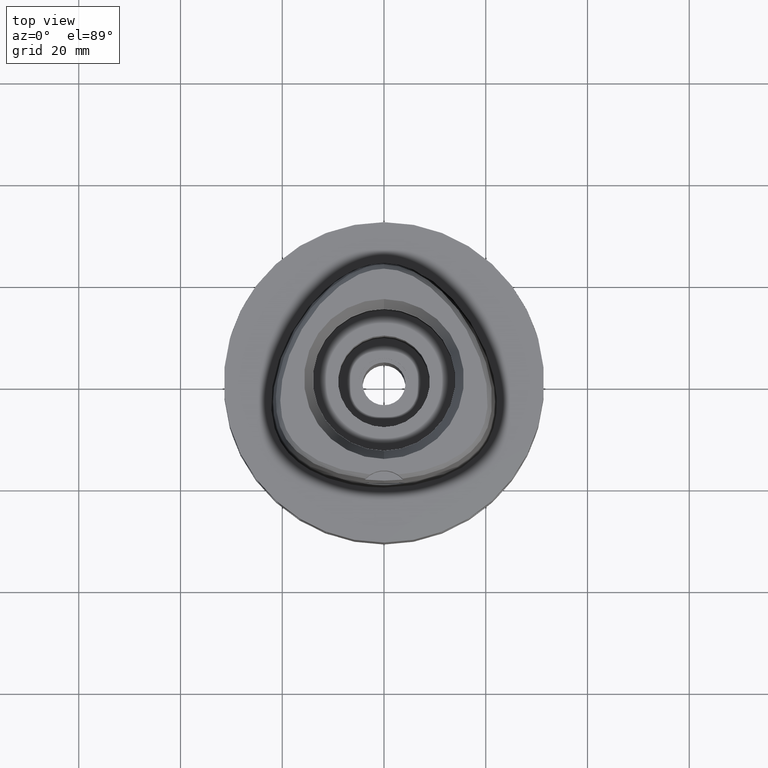
[diagram: clean part render]
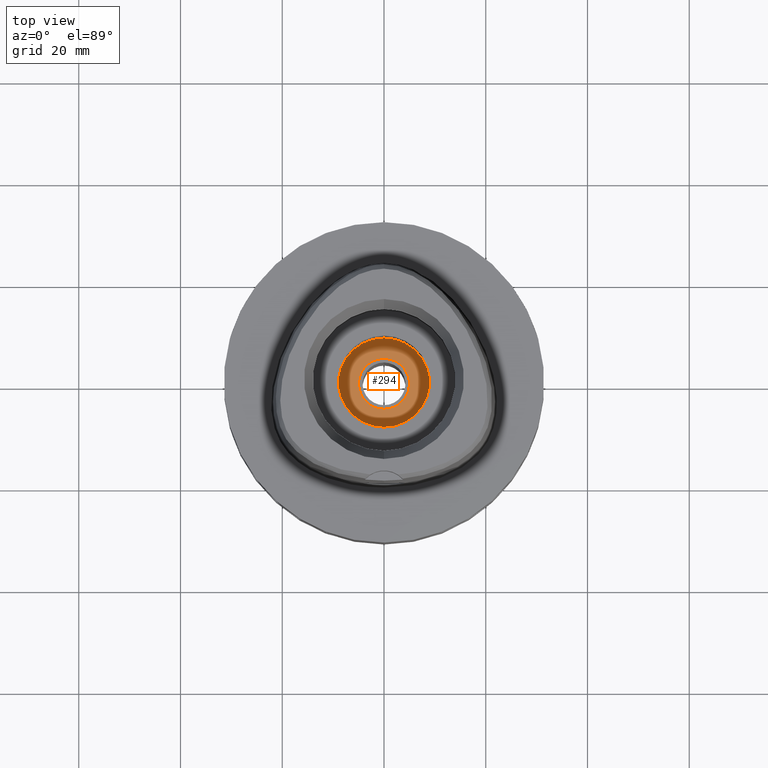
[diagram: same view with one face highlighted and labeled with its STEP entity id]
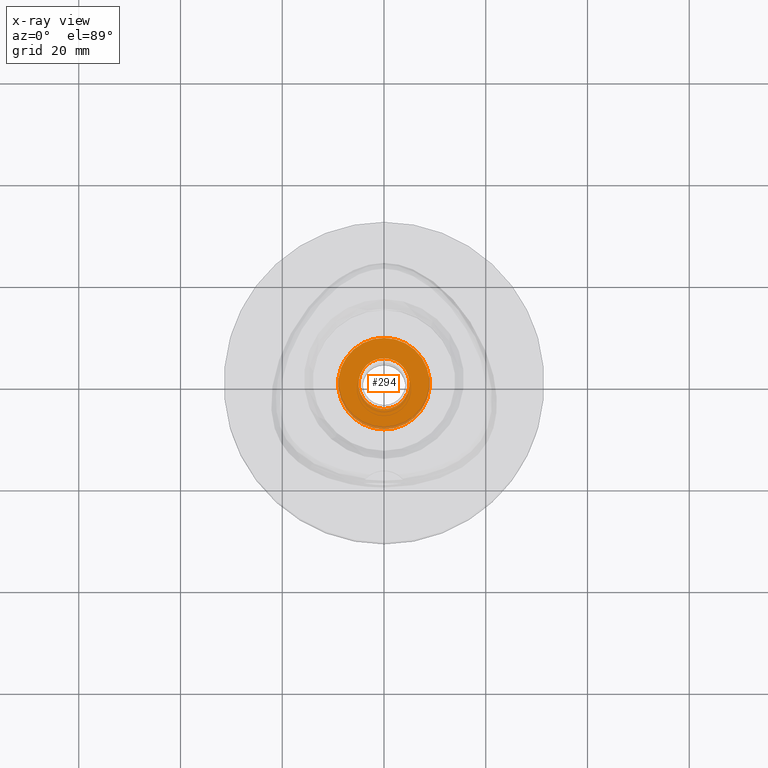
[diagram: x-ray of the same camera — body ghosted, the highlighted face saturated]
A machine part, top view. The second image highlights one B-rep face of the part: STEP entity #294.
The next image is the same camera in x-ray: the body ghosted, the highlighted face saturated — about 5% of this face is hidden behind the body in this view.
In plain terms, the highlighted planar face has unit normal (0, 0, -1).
Its self-contained STEP definition (entity closure, byte-faithful):
#95 = FACE_BOUND ( 'NONE', #1320, .T. ) ;
#127 = AXIS2_PLACEMENT_3D ( 'NONE', #780, #3284, #5015 ) ;
#262 = EDGE_CURVE ( 'NONE', #3087, #334, #1254, .T. ) ;
#294 = ADVANCED_FACE ( 'NONE', ( #4256, #95 ), #3453, .F. ) ;
#334 = VERTEX_POINT ( 'NONE', #1720 ) ;
#441 = DIRECTION ( 'NONE',  ( 0.0000000000000000000, 0.0000000000000000000, -1.000000000000000000 ) ) ;
#447 = AXIS2_PLACEMENT_3D ( 'NONE', #925, #3050, #5059 ) ;
#469 = EDGE_CURVE ( 'NONE', #334, #3087, #2125, .T. ) ;
#526 = DIRECTION ( 'NONE',  ( 0.0000000000000000000, -1.000000000000000000, 0.0000000000000000000 ) ) ;
#568 = AXIS2_PLACEMENT_3D ( 'NONE', #2300, #4418, #4008 ) ;
#720 = VERTEX_POINT ( 'NONE', #3066 ) ;
#780 = CARTESIAN_POINT ( 'NONE',  ( 0.0000000000000000000, 0.0000000000000000000, -16.00000000000000000 ) ) ;
#925 = CARTESIAN_POINT ( 'NONE',  ( 0.0000000000000000000, 1.266897113717999920E-14, -16.00000000000000000 ) ) ;
#1104 = CARTESIAN_POINT ( 'NONE',  ( 0.0000000000000000000, -9.000000000000000000, -16.00000000000000000 ) ) ;
#1190 = VERTEX_POINT ( 'NONE', #1104 ) ;
#1199 = CARTESIAN_POINT ( 'NONE',  ( 0.0000000000000000000, 1.266897113717999920E-14, -16.00000000000000000 ) ) ;
#1254 = CIRCLE ( 'NONE', #447, 5.000000000000000000 ) ;
#1320 = EDGE_LOOP ( 'NONE', ( #4397, #1763 ) ) ;
#1373 = CIRCLE ( 'NONE', #568, 9.000000000000000000 ) ;
#1720 = CARTESIAN_POINT ( 'NONE',  ( 0.0000000000000000000, 5.000000000000000000, -16.00000000000000000 ) ) ;
#1763 = ORIENTED_EDGE ( 'NONE', *, *, #262, .F. ) ;
#2125 = CIRCLE ( 'NONE', #4156, 5.000000000000000000 ) ;
#2246 = CARTESIAN_POINT ( 'NONE',  ( 0.0000000000000000000, 1.028703311283999754E-14, -16.00000000000000000 ) ) ;
#2300 = CARTESIAN_POINT ( 'NONE',  ( 0.0000000000000000000, 0.0000000000000000000, -16.00000000000000000 ) ) ;
#2848 = CARTESIAN_POINT ( 'NONE',  ( 0.0000000000000000000, -5.000000000000000000, -16.00000000000000000 ) ) ;
#2883 = DIRECTION ( 'NONE',  ( 0.0000000000000000000, 0.0000000000000000000, 1.000000000000000000 ) ) ;
#3050 = DIRECTION ( 'NONE',  ( 0.0000000000000000000, 0.0000000000000000000, 1.000000000000000000 ) ) ;
#3066 = CARTESIAN_POINT ( 'NONE',  ( 0.0000000000000000000, 9.000000000000000000, -16.00000000000000000 ) ) ;
#3087 = VERTEX_POINT ( 'NONE', #2848 ) ;
#3284 = DIRECTION ( 'NONE',  ( 0.0000000000000000000, 0.0000000000000000000, -1.000000000000000000 ) ) ;
#3299 = EDGE_CURVE ( 'NONE', #720, #1190, #4797, .T. ) ;
#3364 = ORIENTED_EDGE ( 'NONE', *, *, #4449, .F. ) ;
#3453 = PLANE ( 'NONE',  #4335 ) ;
#3548 = EDGE_LOOP ( 'NONE', ( #4961, #3364 ) ) ;
#4008 = DIRECTION ( 'NONE',  ( 0.0000000000000000000, -1.000000000000000000, 0.0000000000000000000 ) ) ;
#4156 = AXIS2_PLACEMENT_3D ( 'NONE', #1199, #2883, #4558 ) ;
#4256 = FACE_OUTER_BOUND ( 'NONE', #3548, .T. ) ;
#4335 = AXIS2_PLACEMENT_3D ( 'NONE', #2246, #441, #526 ) ;
#4397 = ORIENTED_EDGE ( 'NONE', *, *, #469, .F. ) ;
#4418 = DIRECTION ( 'NONE',  ( 0.0000000000000000000, 0.0000000000000000000, -1.000000000000000000 ) ) ;
#4449 = EDGE_CURVE ( 'NONE', #1190, #720, #1373, .T. ) ;
#4558 = DIRECTION ( 'NONE',  ( 0.0000000000000000000, 1.000000000000000000, 0.0000000000000000000 ) ) ;
#4797 = CIRCLE ( 'NONE', #127, 9.000000000000000000 ) ;
#4961 = ORIENTED_EDGE ( 'NONE', *, *, #3299, .F. ) ;
#5015 = DIRECTION ( 'NONE',  ( 0.0000000000000000000, 1.000000000000000000, 0.0000000000000000000 ) ) ;
#5059 = DIRECTION ( 'NONE',  ( 0.0000000000000000000, -1.000000000000000000, 0.0000000000000000000 ) ) ;